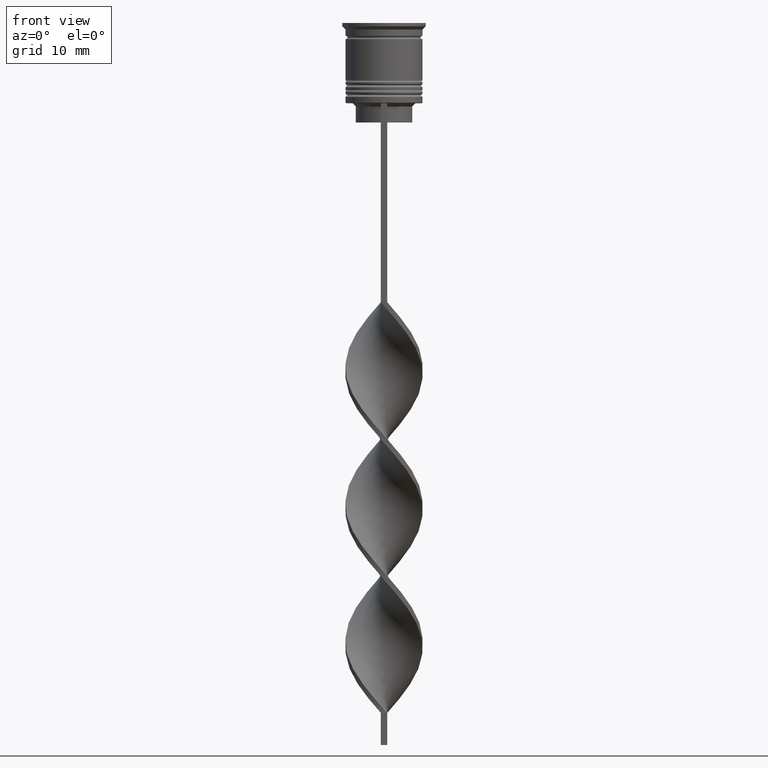
[diagram: clean part render]
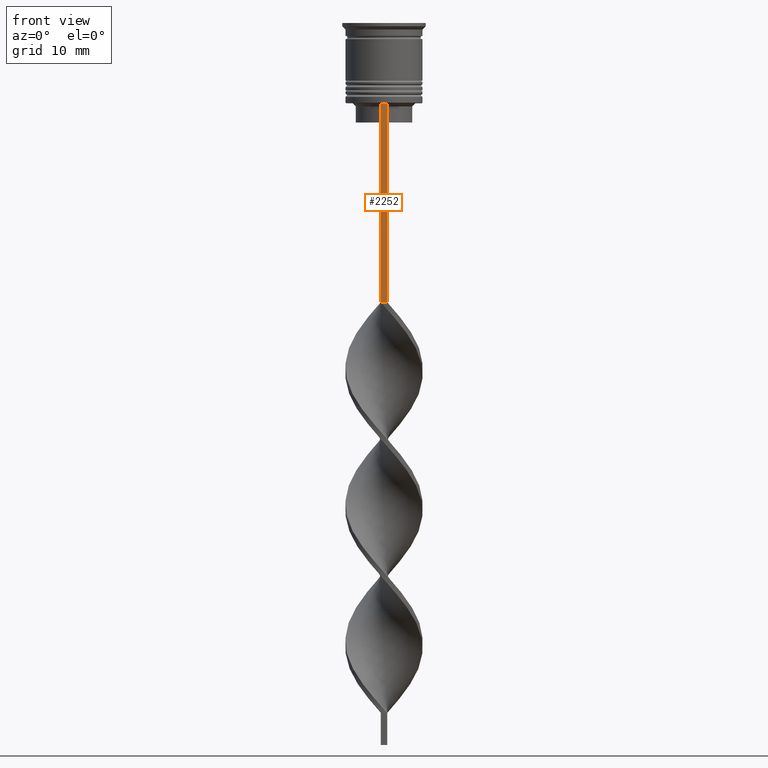
[diagram: same view with one face highlighted and labeled with its STEP entity id]
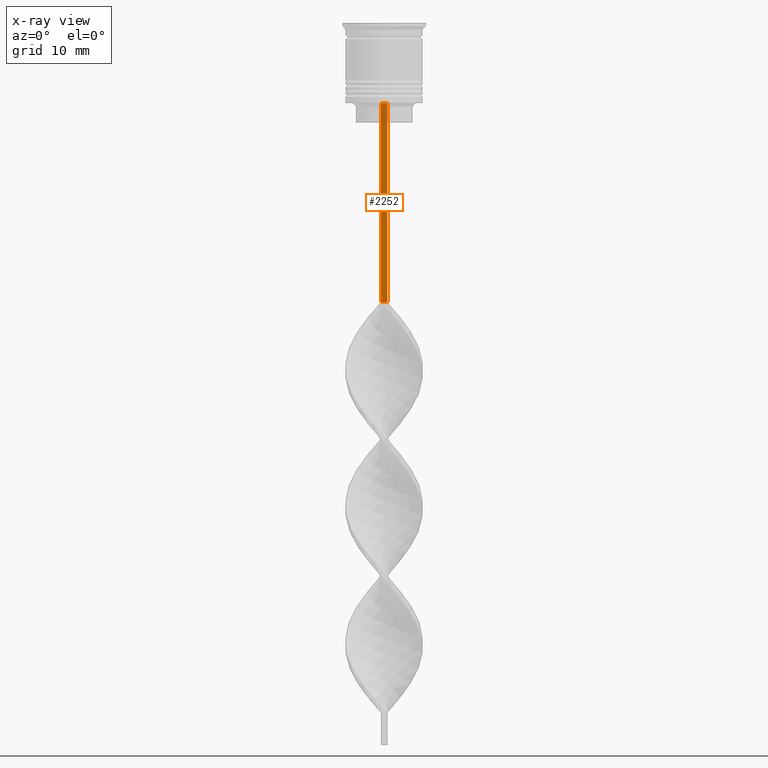
[diagram: x-ray of the same camera — body ghosted, the highlighted face saturated]
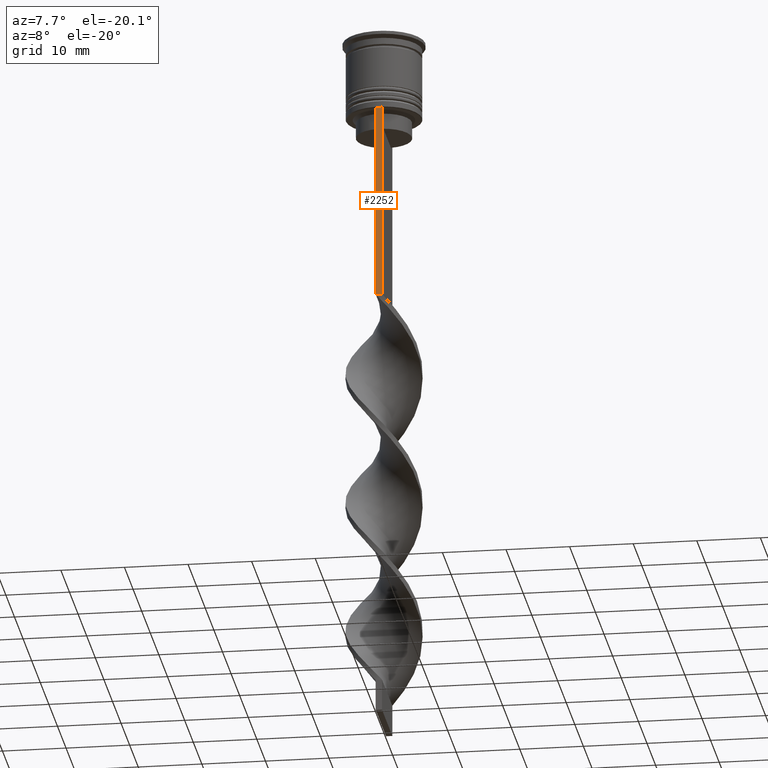
[diagram: same view with one face highlighted and labeled with its STEP entity id]
A machine part, front view. The second image highlights one B-rep face of the part: STEP entity #2252.
The next image is the same camera in x-ray: the body ghosted, the highlighted face saturated — about 0% of this face is hidden behind the body in this view.
A second angle (auxiliary view) of the same face is appended — the face is thin or edge-on in the first view.
In plain terms, the highlighted planar face has unit normal (0, -1, -0).
Its self-contained STEP definition (entity closure, byte-faithful):
#33 = ORIENTED_EDGE ( 'NONE', *, *, #2277, .F. ) ;
#36 = CARTESIAN_POINT ( 'NONE',  ( 0.5000000000000002220, -6.000000000000000000, -43.50000000000000000 ) ) ;
#66 = VECTOR ( 'NONE', #1417, 1000.000000000000000 ) ;
#76 = EDGE_CURVE ( 'NONE', #554, #842, #330, .T. ) ;
#213 = FACE_OUTER_BOUND ( 'NONE', #3081, .T. ) ;
#234 = VECTOR ( 'NONE', #1381, 1000.000000000000000 ) ;
#250 = CARTESIAN_POINT ( 'NONE',  ( 0.5000000000000002220, -6.000000000000000000, -0.4584054212077061097 ) ) ;
#330 = LINE ( 'NONE', #2545, #66 ) ;
#360 = CARTESIAN_POINT ( 'NONE',  ( 0.5000000000000002220, -6.000000000000000000, -12.50000000000000000 ) ) ;
#554 = VERTEX_POINT ( 'NONE', #3575 ) ;
#624 = LINE ( 'NONE', #360, #2214 ) ;
#714 = DIRECTION ( 'NONE',  ( 0.000000000000000000, 0.000000000000000000, -1.000000000000000000 ) ) ;
#842 = VERTEX_POINT ( 'NONE', #3131 ) ;
#1307 = EDGE_CURVE ( 'NONE', #554, #3136, #624, .T. ) ;
#1312 = PLANE ( 'NONE',  #3386 ) ;
#1349 = DIRECTION ( 'NONE',  ( 0.000000000000000000, -1.000000000000000000, -0.000000000000000000 ) ) ;
#1381 = DIRECTION ( 'NONE',  ( -1.000000000000000000, 0.000000000000000000, 0.000000000000000000 ) ) ;
#1417 = DIRECTION ( 'NONE',  ( 0.000000000000000000, 0.000000000000000000, -1.000000000000000000 ) ) ;
#1464 = DIRECTION ( 'NONE',  ( 1.000000000000000000, 0.000000000000000000, 0.000000000000000000 ) ) ;
#1810 = EDGE_CURVE ( 'NONE', #3136, #2471, #1830, .T. ) ;
#1830 = LINE ( 'NONE', #2381, #2218 ) ;
#1892 = ORIENTED_EDGE ( 'NONE', *, *, #1307, .F. ) ;
#2188 = CARTESIAN_POINT ( 'NONE',  ( 0.5000000000000002220, -6.000000000000000000, -12.50000000000000000 ) ) ;
#2214 = VECTOR ( 'NONE', #1464, 1000.000000000000000 ) ;
#2218 = VECTOR ( 'NONE', #2663, 1000.000000000000000 ) ;
#2252 = ADVANCED_FACE ( 'NONE', ( #213 ), #1312, .T. ) ;
#2277 = EDGE_CURVE ( 'NONE', #2471, #842, #2799, .T. ) ;
#2381 = CARTESIAN_POINT ( 'NONE',  ( 0.5000000000000002220, -6.000000000000000000, -0.4584054212077061097 ) ) ;
#2471 = VERTEX_POINT ( 'NONE', #2924 ) ;
#2545 = CARTESIAN_POINT ( 'NONE',  ( -0.4999999999999997780, -6.000000000000000000, -0.4584054212077061097 ) ) ;
#2663 = DIRECTION ( 'NONE',  ( 0.000000000000000000, 0.000000000000000000, -1.000000000000000000 ) ) ;
#2684 = ORIENTED_EDGE ( 'NONE', *, *, #76, .T. ) ;
#2799 = LINE ( 'NONE', #36, #234 ) ;
#2924 = CARTESIAN_POINT ( 'NONE',  ( 0.5000000000000002220, -5.999999999999999112, -43.50000000000000000 ) ) ;
#3081 = EDGE_LOOP ( 'NONE', ( #1892, #2684, #33, #3296 ) ) ;
#3131 = CARTESIAN_POINT ( 'NONE',  ( -0.4999999999999997780, -6.000000000000000000, -43.50000000000000000 ) ) ;
#3136 = VERTEX_POINT ( 'NONE', #2188 ) ;
#3296 = ORIENTED_EDGE ( 'NONE', *, *, #1810, .F. ) ;
#3386 = AXIS2_PLACEMENT_3D ( 'NONE', #250, #1349, #714 ) ;
#3575 = CARTESIAN_POINT ( 'NONE',  ( -0.4999999999999997780, -6.000000000000000000, -12.50000000000000000 ) ) ;